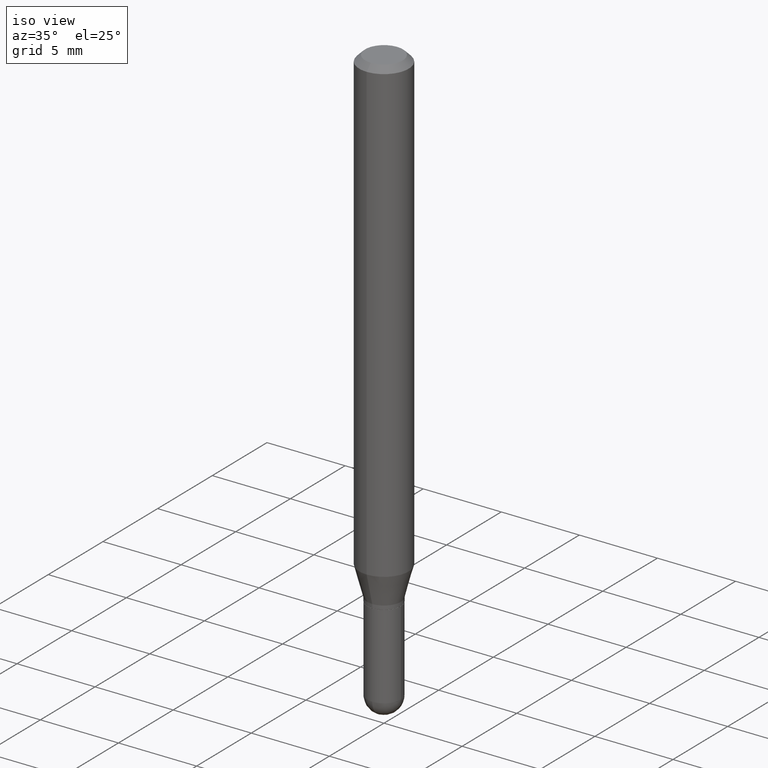
[diagram: clean part render]
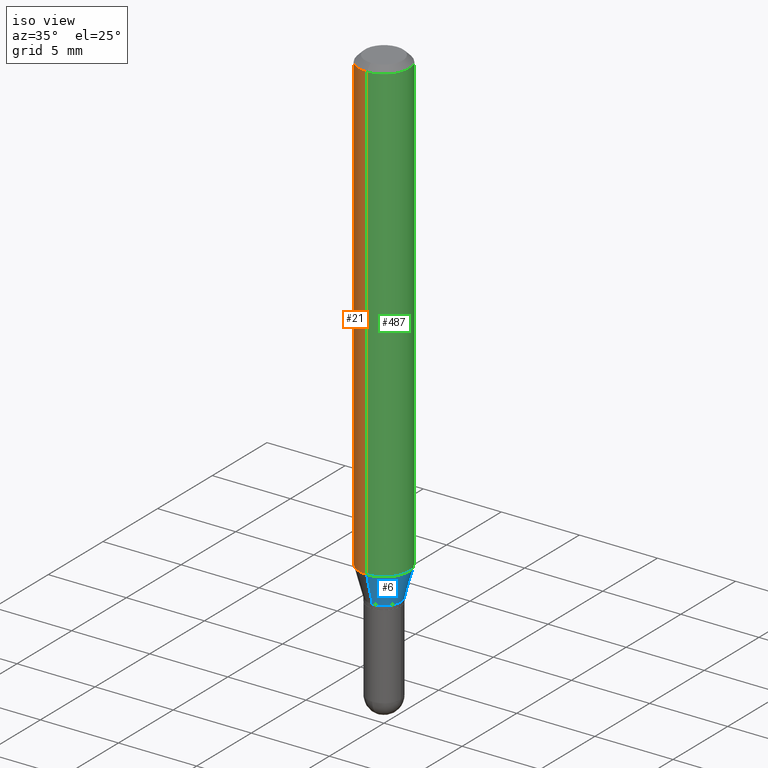
[diagram: same view with three faces highlighted in distinct colors, each labeled with its STEP entity id]
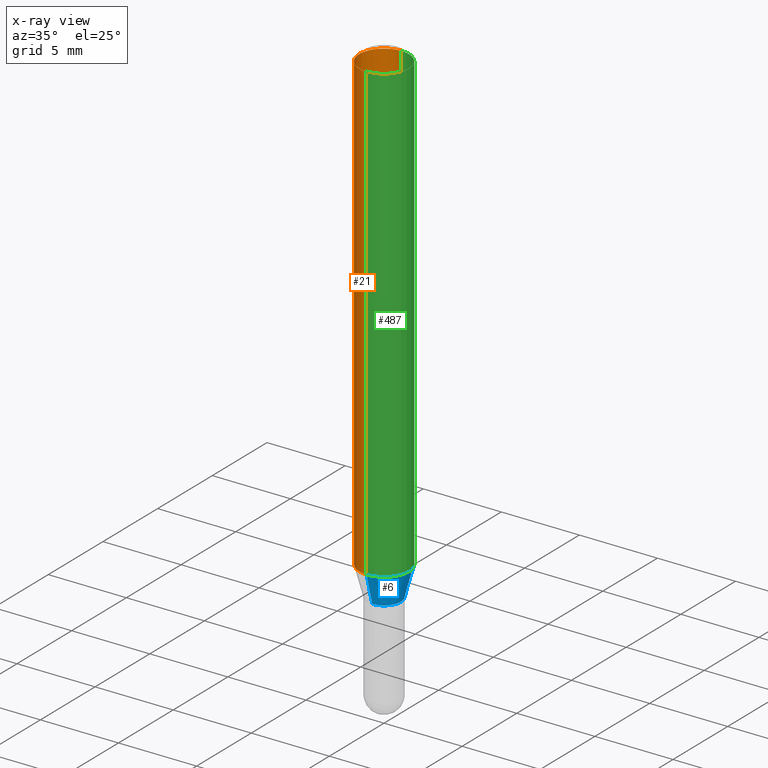
[diagram: x-ray of the same camera — body ghosted, the three highlighted faces saturated]
A machine part, iso view with three faces highlighted in distinct colors.
The next image is the same camera in x-ray (body ghosted, the three faces saturated) — at least one of them is partly hidden behind the body in this view.
Their STEP definitions:

[orange] entity #21 — the highlighted cylindrical surface (edge-blend (fillet) strip) has radius 1.5875 mm, axis along (-0, 0, 1).
#11 = EDGE_CURVE ( 'NONE', #352, #65, #165, .T. ) ;
#14 = CARTESIAN_POINT ( 'NONE',  ( 0.000000000000000000, 0.000000000000000000, 0.000000000000000000 ) ) ;
#21 = ADVANCED_FACE ( 'NONE', ( #364 ), #56, .T. ) ;
#32 = DIRECTION ( 'NONE',  ( -2.445401293886370211E-29, 3.491578020297540772E-15, 1.000000000000000000 ) ) ;
#56 = CYLINDRICAL_SURFACE ( 'NONE', #340, 0.06250000000000000000 ) ;
#58 = CARTESIAN_POINT ( 'NONE',  ( 3.668101940829557103E-31, -5.237367030446314018E-17, -0.01500000000000000812 ) ) ;
#65 = VERTEX_POINT ( 'NONE', #488 ) ;
#87 = DIRECTION ( 'NONE',  ( -2.445401293886370211E-29, 3.491578020297540772E-15, 1.000000000000000000 ) ) ;
#148 = VECTOR ( 'NONE', #87, 39.37007874015748143 ) ;
#165 = LINE ( 'NONE', #287, #148 ) ;
#168 = VECTOR ( 'NONE', #285, 39.37007874015748143 ) ;
#216 = DIRECTION ( 'NONE',  ( -6.982962677686265922E-15, -1.000000000000000000, 3.483106191921935554E-15 ) ) ;
#224 = ORIENTED_EDGE ( 'NONE', *, *, #11, .F. ) ;
#236 = VERTEX_POINT ( 'NONE', #408 ) ;
#254 = CARTESIAN_POINT ( 'NONE',  ( -4.364351673553916201E-16, -0.06250000000000000000, 2.182236262685962982E-16 ) ) ;
#283 = DIRECTION ( 'NONE',  ( -2.445401293886370211E-29, 3.491578020297540772E-15, 1.000000000000000000 ) ) ;
#285 = DIRECTION ( 'NONE',  ( -2.445401293886370211E-29, 3.491578020297540772E-15, 1.000000000000000000 ) ) ;
#287 = CARTESIAN_POINT ( 'NONE',  ( 4.440892098500625669E-16, 0.06250000000000000000, -2.182236262685962982E-16 ) ) ;
#293 = EDGE_CURVE ( 'NONE', #65, #472, #323, .T. ) ;
#294 = CARTESIAN_POINT ( 'NONE',  ( 4.440892098500911138E-16, 0.06249999999999597544, -1.160358983848622794 ) ) ;
#299 = AXIS2_PLACEMENT_3D ( 'NONE', #58, #335, #216 ) ;
#308 = EDGE_LOOP ( 'NONE', ( #224, #507, #469, #348 ) ) ;
#310 = EDGE_CURVE ( 'NONE', #352, #236, #314, .T. ) ;
#314 = CIRCLE ( 'NONE', #379, 0.06250000000000000000 ) ;
#323 = CIRCLE ( 'NONE', #299, 0.06250000000000000000 ) ;
#324 = DIRECTION ( 'NONE',  ( -6.982962677686265922E-15, -1.000000000000000000, 3.491578020297540772E-15 ) ) ;
#335 = DIRECTION ( 'NONE',  ( -2.445401293886370211E-29, 3.491578020297540772E-15, 1.000000000000000000 ) ) ;
#339 = DIRECTION ( 'NONE',  ( -6.982962677686265922E-15, -1.000000000000000000, 4.370956789862821150E-15 ) ) ;
#340 = AXIS2_PLACEMENT_3D ( 'NONE', #14, #283, #324 ) ;
#348 = ORIENTED_EDGE ( 'NONE', *, *, #293, .F. ) ;
#352 = VERTEX_POINT ( 'NONE', #294 ) ;
#358 = LINE ( 'NONE', #254, #168 ) ;
#364 = FACE_OUTER_BOUND ( 'NONE', #308, .T. ) ;
#379 = AXIS2_PLACEMENT_3D ( 'NONE', #422, #32, #339 ) ;
#408 = CARTESIAN_POINT ( 'NONE',  ( -4.364351673553629253E-16, -0.06250000000000401068, -1.160358983848622128 ) ) ;
#413 = CARTESIAN_POINT ( 'NONE',  ( -4.364351673553912750E-16, -0.06250000000000005551, -0.01499999999999979128 ) ) ;
#422 = CARTESIAN_POINT ( 'NONE',  ( 2.837543360476095012E-29, -4.051483923660639019E-15, -1.160358983848622572 ) ) ;
#463 = EDGE_CURVE ( 'NONE', #236, #472, #358, .T. ) ;
#469 = ORIENTED_EDGE ( 'NONE', *, *, #463, .T. ) ;
#472 = VERTEX_POINT ( 'NONE', #413 ) ;
#488 = CARTESIAN_POINT ( 'NONE',  ( 4.440892098500911138E-16, 0.06249999999999995143, -0.01500000000000022669 ) ) ;
#507 = ORIENTED_EDGE ( 'NONE', *, *, #310, .T. ) ;

[blue] entity #6 — the highlighted conical surface has half-angle 15 deg.
#6 = ADVANCED_FACE ( 'NONE', ( #205 ), #27, .T. ) ;
#18 = EDGE_CURVE ( 'NONE', #36, #352, #136, .T. ) ;
#19 = CARTESIAN_POINT ( 'NONE',  ( 2.837543360476095012E-29, -4.051483923660639019E-15, -1.160358983848622572 ) ) ;
#25 = DIRECTION ( 'NONE',  ( -2.445401293886370211E-29, 3.491578020297540772E-15, 1.000000000000000000 ) ) ;
#27 = CONICAL_SURFACE ( 'NONE', #50, 0.04249999999999991979, 0.2617993877991501850 ) ;
#29 = DIRECTION ( 'NONE',  ( -2.445401293886370211E-29, 3.491578020297540772E-15, 1.000000000000000000 ) ) ;
#36 = VERTEX_POINT ( 'NONE', #248 ) ;
#50 = AXIS2_PLACEMENT_3D ( 'NONE', #131, #25, #246 ) ;
#60 = EDGE_CURVE ( 'NONE', #236, #352, #409, .T. ) ;
#85 = AXIS2_PLACEMENT_3D ( 'NONE', #378, #29, #336 ) ;
#94 = ORIENTED_EDGE ( 'NONE', *, *, #303, .F. ) ;
#131 = CARTESIAN_POINT ( 'NONE',  ( 3.020070597949667254E-29, -4.312098855067463589E-15, -1.235000000000000098 ) ) ;
#134 = CIRCLE ( 'NONE', #85, 0.04249999999999991979 ) ;
#136 = LINE ( 'NONE', #361, #313 ) ;
#137 = CARTESIAN_POINT ( 'NONE',  ( -2.967759138016355400E-16, -0.04250000000000423578, -1.234999999999999876 ) ) ;
#183 = AXIS2_PLACEMENT_3D ( 'NONE', #19, #326, #213 ) ;
#205 = FACE_OUTER_BOUND ( 'NONE', #333, .T. ) ;
#209 = ORIENTED_EDGE ( 'NONE', *, *, #60, .F. ) ;
#213 = DIRECTION ( 'NONE',  ( -6.982962677686265922E-15, -1.000000000000000000, 4.370956789862821150E-15 ) ) ;
#236 = VERTEX_POINT ( 'NONE', #408 ) ;
#239 = ORIENTED_EDGE ( 'NONE', *, *, #18, .T. ) ;
#245 = DIRECTION ( 'NONE',  ( 1.839019923739599526E-15, 0.2588190451025248473, 0.9659258262890670910 ) ) ;
#246 = DIRECTION ( 'NONE',  ( -6.982962677686266711E-15, -1.000000000000000000, 6.427877632151220009E-15 ) ) ;
#248 = CARTESIAN_POINT ( 'NONE',  ( 3.730349362740815744E-16, 0.04249999999999561073, -1.235000000000000320 ) ) ;
#294 = CARTESIAN_POINT ( 'NONE',  ( 4.440892098500911138E-16, 0.06249999999999597544, -1.160358983848622794 ) ) ;
#303 = EDGE_CURVE ( 'NONE', #312, #236, #376, .T. ) ;
#312 = VERTEX_POINT ( 'NONE', #137 ) ;
#313 = VECTOR ( 'NONE', #245, 39.37007874015748143 ) ;
#326 = DIRECTION ( 'NONE',  ( -2.445401293886370211E-29, 3.491578020297540772E-15, 1.000000000000000000 ) ) ;
#333 = EDGE_LOOP ( 'NONE', ( #468, #239, #209, #94 ) ) ;
#336 = DIRECTION ( 'NONE',  ( -6.982962677686266711E-15, -1.000000000000000000, 6.427877632151220009E-15 ) ) ;
#349 = EDGE_CURVE ( 'NONE', #312, #36, #134, .T. ) ;
#352 = VERTEX_POINT ( 'NONE', #294 ) ;
#355 = VECTOR ( 'NONE', #393, 39.37007874015749564 ) ;
#361 = CARTESIAN_POINT ( 'NONE',  ( 3.019806626980721830E-16, 0.04249999999999561073, -1.235000000000000320 ) ) ;
#376 = LINE ( 'NONE', #421, #355 ) ;
#378 = CARTESIAN_POINT ( 'NONE',  ( 3.020070597949667254E-29, -4.312098855067463589E-15, -1.235000000000000098 ) ) ;
#393 = DIRECTION ( 'NONE',  ( -1.807323732225329350E-15, -0.2588190451025180194, 0.9659258262890689783 ) ) ;
#408 = CARTESIAN_POINT ( 'NONE',  ( -4.364351673553629253E-16, -0.06250000000000401068, -1.160358983848622128 ) ) ;
#409 = CIRCLE ( 'NONE', #183, 0.06250000000000000000 ) ;
#421 = CARTESIAN_POINT ( 'NONE',  ( -2.967759138016355400E-16, -0.04250000000000423578, -1.234999999999999876 ) ) ;
#468 = ORIENTED_EDGE ( 'NONE', *, *, #349, .T. ) ;

[green] entity #487 — the highlighted cylindrical surface (edge-blend (fillet) strip) has radius 1.5875 mm, axis along (-0, 0, 1).
#4 = ORIENTED_EDGE ( 'NONE', *, *, #463, .F. ) ;
#11 = EDGE_CURVE ( 'NONE', #352, #65, #165, .T. ) ;
#19 = CARTESIAN_POINT ( 'NONE',  ( 2.837543360476095012E-29, -4.051483923660639019E-15, -1.160358983848622572 ) ) ;
#22 = ORIENTED_EDGE ( 'NONE', *, *, #11, .T. ) ;
#31 = CARTESIAN_POINT ( 'NONE',  ( 3.668101940829557103E-31, -5.237367030446314018E-17, -0.01500000000000000812 ) ) ;
#42 = ORIENTED_EDGE ( 'NONE', *, *, #60, .T. ) ;
#45 = CYLINDRICAL_SURFACE ( 'NONE', #458, 0.06250000000000000000 ) ;
#51 = AXIS2_PLACEMENT_3D ( 'NONE', #31, #331, #329 ) ;
#60 = EDGE_CURVE ( 'NONE', #236, #352, #409, .T. ) ;
#65 = VERTEX_POINT ( 'NONE', #488 ) ;
#87 = DIRECTION ( 'NONE',  ( -2.445401293886370211E-29, 3.491578020297540772E-15, 1.000000000000000000 ) ) ;
#148 = VECTOR ( 'NONE', #87, 39.37007874015748143 ) ;
#165 = LINE ( 'NONE', #287, #148 ) ;
#166 = CARTESIAN_POINT ( 'NONE',  ( 0.000000000000000000, 0.000000000000000000, 0.000000000000000000 ) ) ;
#168 = VECTOR ( 'NONE', #285, 39.37007874015748143 ) ;
#183 = AXIS2_PLACEMENT_3D ( 'NONE', #19, #326, #213 ) ;
#186 = EDGE_CURVE ( 'NONE', #472, #65, #332, .T. ) ;
#203 = EDGE_LOOP ( 'NONE', ( #42, #22, #420, #4 ) ) ;
#213 = DIRECTION ( 'NONE',  ( -6.982962677686265922E-15, -1.000000000000000000, 4.370956789862821150E-15 ) ) ;
#236 = VERTEX_POINT ( 'NONE', #408 ) ;
#254 = CARTESIAN_POINT ( 'NONE',  ( -4.364351673553916201E-16, -0.06250000000000000000, 2.182236262685962982E-16 ) ) ;
#285 = DIRECTION ( 'NONE',  ( -2.445401293886370211E-29, 3.491578020297540772E-15, 1.000000000000000000 ) ) ;
#287 = CARTESIAN_POINT ( 'NONE',  ( 4.440892098500625669E-16, 0.06250000000000000000, -2.182236262685962982E-16 ) ) ;
#294 = CARTESIAN_POINT ( 'NONE',  ( 4.440892098500911138E-16, 0.06249999999999597544, -1.160358983848622794 ) ) ;
#320 = DIRECTION ( 'NONE',  ( -2.445401293886370211E-29, 3.491578020297540772E-15, 1.000000000000000000 ) ) ;
#325 = DIRECTION ( 'NONE',  ( -6.982962677686265922E-15, -1.000000000000000000, 3.491578020297540772E-15 ) ) ;
#326 = DIRECTION ( 'NONE',  ( -2.445401293886370211E-29, 3.491578020297540772E-15, 1.000000000000000000 ) ) ;
#329 = DIRECTION ( 'NONE',  ( -6.982962677686265922E-15, -1.000000000000000000, 3.483106191921935554E-15 ) ) ;
#331 = DIRECTION ( 'NONE',  ( -2.445401293886370211E-29, 3.491578020297540772E-15, 1.000000000000000000 ) ) ;
#332 = CIRCLE ( 'NONE', #51, 0.06250000000000000000 ) ;
#352 = VERTEX_POINT ( 'NONE', #294 ) ;
#358 = LINE ( 'NONE', #254, #168 ) ;
#408 = CARTESIAN_POINT ( 'NONE',  ( -4.364351673553629253E-16, -0.06250000000000401068, -1.160358983848622128 ) ) ;
#409 = CIRCLE ( 'NONE', #183, 0.06250000000000000000 ) ;
#410 = FACE_OUTER_BOUND ( 'NONE', #203, .T. ) ;
#413 = CARTESIAN_POINT ( 'NONE',  ( -4.364351673553912750E-16, -0.06250000000000005551, -0.01499999999999979128 ) ) ;
#420 = ORIENTED_EDGE ( 'NONE', *, *, #186, .F. ) ;
#458 = AXIS2_PLACEMENT_3D ( 'NONE', #166, #320, #325 ) ;
#463 = EDGE_CURVE ( 'NONE', #236, #472, #358, .T. ) ;
#472 = VERTEX_POINT ( 'NONE', #413 ) ;
#487 = ADVANCED_FACE ( 'NONE', ( #410 ), #45, .T. ) ;
#488 = CARTESIAN_POINT ( 'NONE',  ( 4.440892098500911138E-16, 0.06249999999999995143, -0.01500000000000022669 ) ) ;